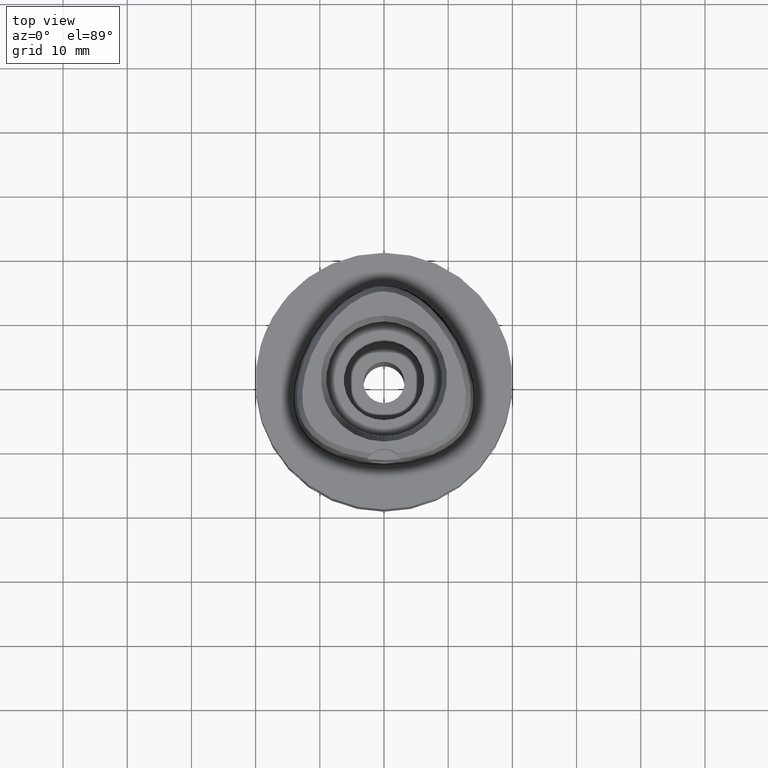
[diagram: clean part render]
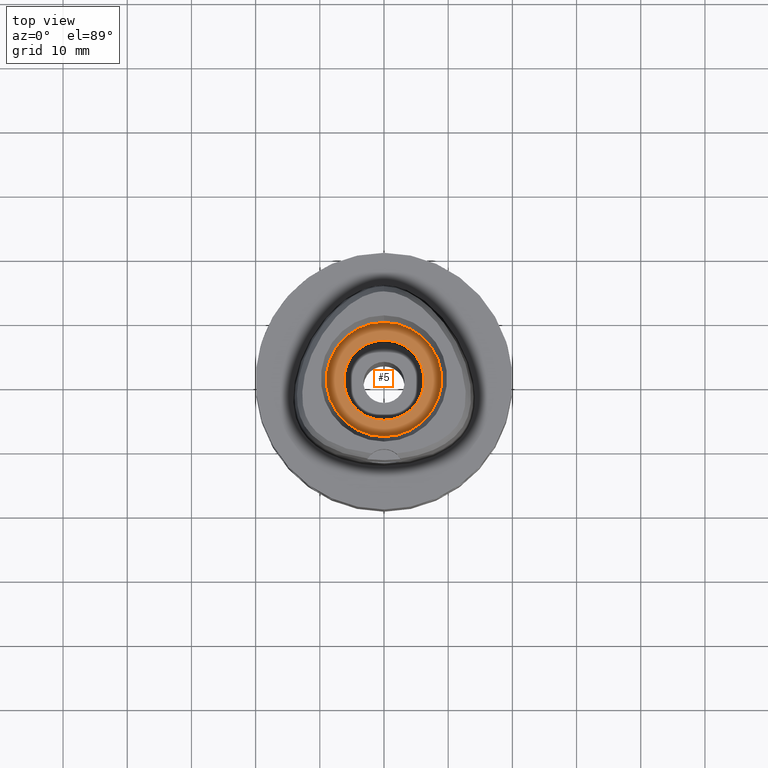
[diagram: same view with one face highlighted and labeled with its STEP entity id]
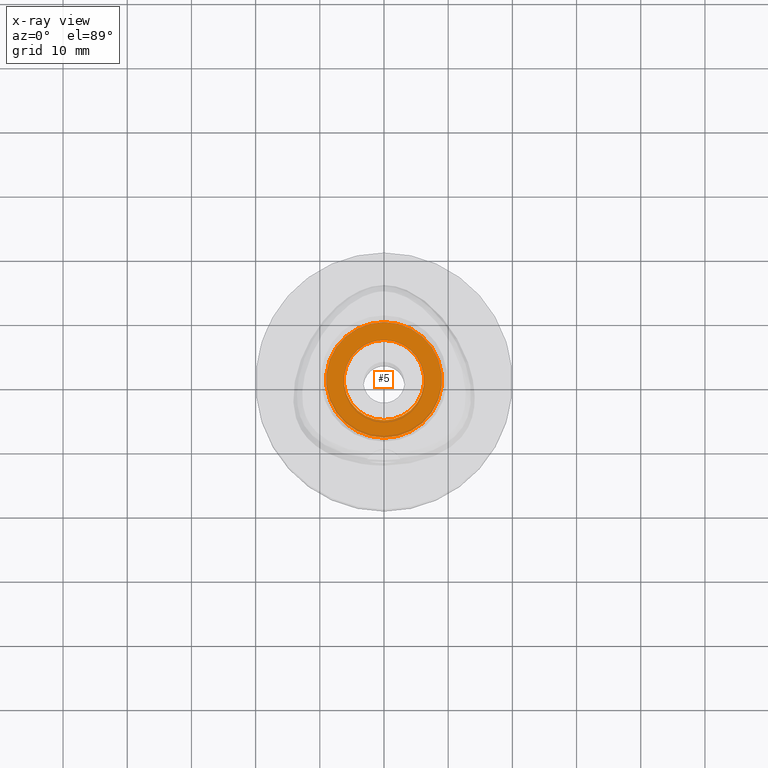
[diagram: x-ray of the same camera — body ghosted, the highlighted face saturated]
A machine part, top view. The second image highlights one B-rep face of the part: STEP entity #5.
The next image is the same camera in x-ray: the body ghosted, the highlighted face saturated — about 0% of this face is hidden behind the body in this view.
In plain terms, the highlighted planar face has unit normal (0, 0, -1).
Its self-contained STEP definition (entity closure, byte-faithful):
#5 = ADVANCED_FACE ( 'NONE', ( #267, #295 ), #2522, .F. ) ;
#21 = CARTESIAN_POINT ( 'NONE',  ( 0.0000000000000000000, 1.533257792532000136E-14, 9.000000000000000000 ) ) ;
#48 = CIRCLE ( 'NONE', #3498, 9.000000000000000000 ) ;
#223 = CARTESIAN_POINT ( 'NONE',  ( 0.0000000000000000000, 9.000000000000000000, 9.000000000000000000 ) ) ;
#267 = FACE_OUTER_BOUND ( 'NONE', #2376, .T. ) ;
#295 = FACE_BOUND ( 'NONE', #4661, .T. ) ;
#474 = VERTEX_POINT ( 'NONE', #4221 ) ;
#497 = CIRCLE ( 'NONE', #2028, 6.250000000000000000 ) ;
#641 = ORIENTED_EDGE ( 'NONE', *, *, #4064, .F. ) ;
#664 = CARTESIAN_POINT ( 'NONE',  ( 0.0000000000000000000, 1.533257792532000136E-14, 9.000000000000000000 ) ) ;
#682 = DIRECTION ( 'NONE',  ( 0.0000000000000000000, 0.0000000000000000000, 1.000000000000000000 ) ) ;
#726 = AXIS2_PLACEMENT_3D ( 'NONE', #1016, #1748, #4428 ) ;
#749 = DIRECTION ( 'NONE',  ( 0.0000000000000000000, 0.0000000000000000000, -1.000000000000000000 ) ) ;
#990 = VERTEX_POINT ( 'NONE', #223 ) ;
#1016 = CARTESIAN_POINT ( 'NONE',  ( 0.0000000000000000000, 1.533257792532000136E-14, 9.000000000000000000 ) ) ;
#1037 = AXIS2_PLACEMENT_3D ( 'NONE', #664, #3970, #1793 ) ;
#1393 = VERTEX_POINT ( 'NONE', #2571 ) ;
#1577 = ORIENTED_EDGE ( 'NONE', *, *, #3246, .F. ) ;
#1625 = ORIENTED_EDGE ( 'NONE', *, *, #3897, .F. ) ;
#1748 = DIRECTION ( 'NONE',  ( 0.0000000000000000000, 0.0000000000000000000, 1.000000000000000000 ) ) ;
#1793 = DIRECTION ( 'NONE',  ( 0.0000000000000000000, -1.000000000000000000, 0.0000000000000000000 ) ) ;
#1883 = CIRCLE ( 'NONE', #1037, 9.000000000000000000 ) ;
#1908 = DIRECTION ( 'NONE',  ( 0.0000000000000000000, 1.000000000000000000, 0.0000000000000000000 ) ) ;
#2028 = AXIS2_PLACEMENT_3D ( 'NONE', #3925, #682, #3575 ) ;
#2099 = CARTESIAN_POINT ( 'NONE',  ( 0.0000000000000000000, 1.334865011070999814E-14, 9.000000000000000000 ) ) ;
#2376 = EDGE_LOOP ( 'NONE', ( #1625, #641 ) ) ;
#2522 = PLANE ( 'NONE',  #3895 ) ;
#2571 = CARTESIAN_POINT ( 'NONE',  ( 0.0000000000000000000, 6.250000000000000000, 9.000000000000000000 ) ) ;
#3172 = CARTESIAN_POINT ( 'NONE',  ( 0.0000000000000000000, -9.000000000000000000, 9.000000000000000000 ) ) ;
#3188 = DIRECTION ( 'NONE',  ( 0.0000000000000000000, 0.0000000000000000000, -1.000000000000000000 ) ) ;
#3235 = EDGE_CURVE ( 'NONE', #1393, #474, #497, .T. ) ;
#3246 = EDGE_CURVE ( 'NONE', #474, #1393, #4717, .T. ) ;
#3498 = AXIS2_PLACEMENT_3D ( 'NONE', #21, #749, #1908 ) ;
#3575 = DIRECTION ( 'NONE',  ( 0.0000000000000000000, 1.000000000000000000, 0.0000000000000000000 ) ) ;
#3895 = AXIS2_PLACEMENT_3D ( 'NONE', #2099, #3188, #4339 ) ;
#3897 = EDGE_CURVE ( 'NONE', #4159, #990, #1883, .T. ) ;
#3925 = CARTESIAN_POINT ( 'NONE',  ( 0.0000000000000000000, 1.533257792532000136E-14, 9.000000000000000000 ) ) ;
#3970 = DIRECTION ( 'NONE',  ( 0.0000000000000000000, 0.0000000000000000000, -1.000000000000000000 ) ) ;
#4064 = EDGE_CURVE ( 'NONE', #990, #4159, #48, .T. ) ;
#4159 = VERTEX_POINT ( 'NONE', #3172 ) ;
#4221 = CARTESIAN_POINT ( 'NONE',  ( 0.0000000000000000000, -6.250000000000000000, 9.000000000000000000 ) ) ;
#4339 = DIRECTION ( 'NONE',  ( 0.0000000000000000000, -1.000000000000000000, 0.0000000000000000000 ) ) ;
#4428 = DIRECTION ( 'NONE',  ( 0.0000000000000000000, -1.000000000000000000, 0.0000000000000000000 ) ) ;
#4602 = ORIENTED_EDGE ( 'NONE', *, *, #3235, .F. ) ;
#4661 = EDGE_LOOP ( 'NONE', ( #1577, #4602 ) ) ;
#4717 = CIRCLE ( 'NONE', #726, 6.250000000000000000 ) ;